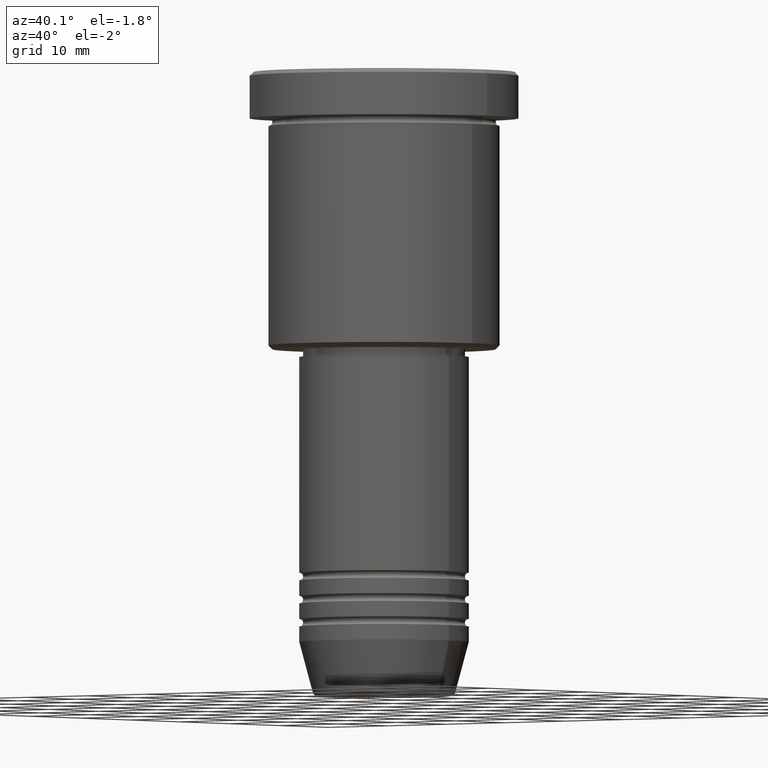
[diagram: clean part render]
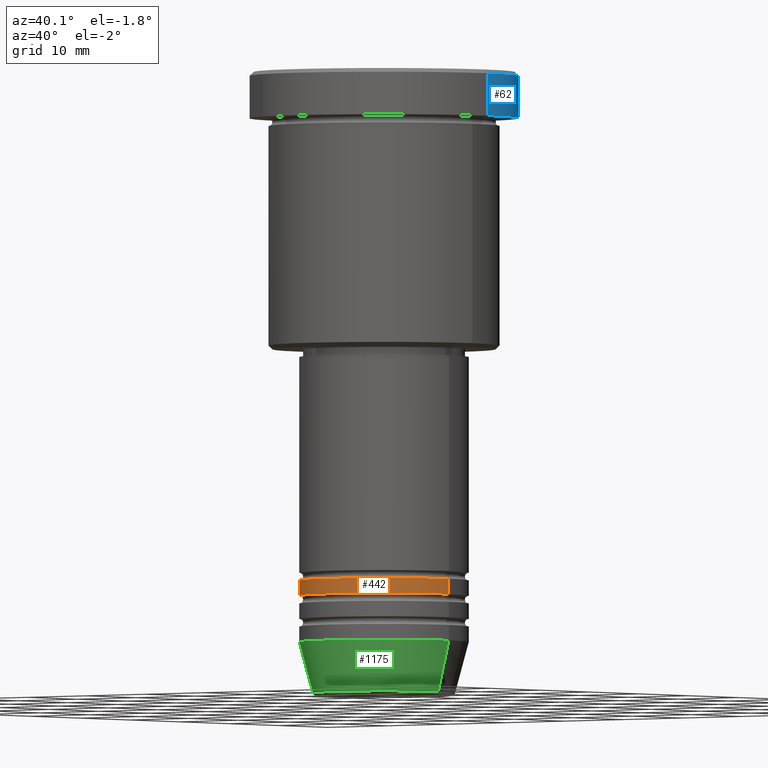
[diagram: same view with three faces highlighted in distinct colors, each labeled with its STEP entity id]
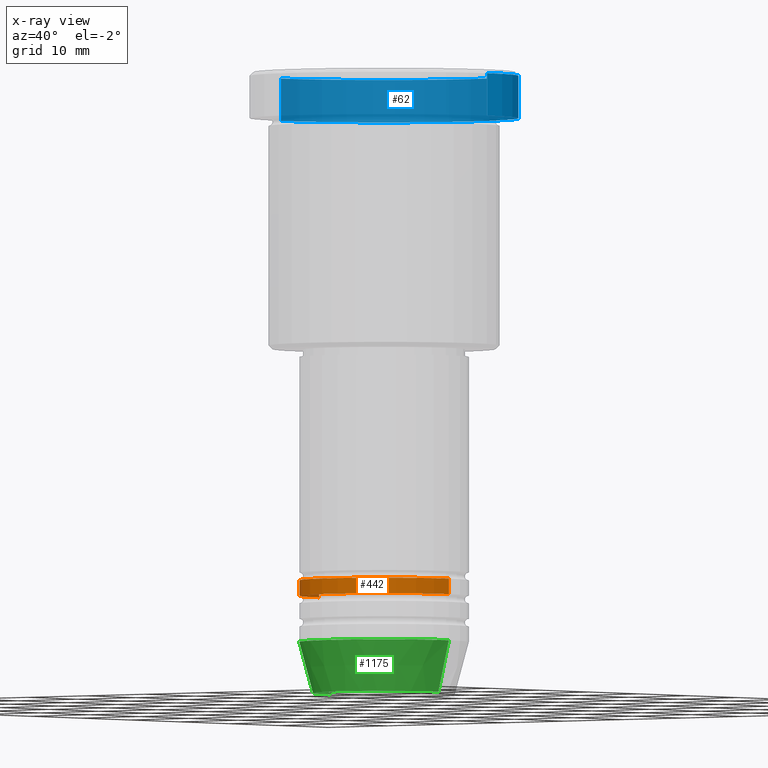
[diagram: x-ray of the same camera — body ghosted, the three highlighted faces saturated]
A machine part, auxiliary view with three faces highlighted in distinct colors.
The next image is the same camera in x-ray (body ghosted, the three faces saturated) — at least one of them is partly hidden behind the body in this view.
Their STEP definitions:

[orange] entity #442 — the highlighted cylindrical surface (partial cylindrical patch) has radius 11 mm, axis along (-0, -0, 1).
#39 = AXIS2_PLACEMENT_3D ( 'NONE', #49, #233, #793 ) ;
#49 = CARTESIAN_POINT ( 'NONE',  ( 0.000000000000000000, 0.000000000000000000, 0.000000000000000000 ) ) ;
#92 = DIRECTION ( 'NONE',  ( -0.000000000000000000, -0.000000000000000000, 1.000000000000000000 ) ) ;
#103 = DIRECTION ( 'NONE',  ( 1.000000000000000000, 0.000000000000000000, 0.000000000000000000 ) ) ;
#196 = ORIENTED_EDGE ( 'NONE', *, *, #555, .T. ) ;
#198 = EDGE_CURVE ( 'NONE', #948, #544, #506, .T. ) ;
#233 = DIRECTION ( 'NONE',  ( -0.000000000000000000, -0.000000000000000000, 1.000000000000000000 ) ) ;
#237 = ORIENTED_EDGE ( 'NONE', *, *, #198, .T. ) ;
#258 = DIRECTION ( 'NONE',  ( -0.000000000000000000, -0.000000000000000000, 1.000000000000000000 ) ) ;
#261 = CIRCLE ( 'NONE', #986, 11.00000000000000000 ) ;
#275 = VECTOR ( 'NONE', #258, 1000.000000000000000 ) ;
#303 = CARTESIAN_POINT ( 'NONE',  ( 11.00000000000000000, 0.000000000000000000, -67.99999999999997158 ) ) ;
#308 = VERTEX_POINT ( 'NONE', #996 ) ;
#328 = CYLINDRICAL_SURFACE ( 'NONE', #39, 11.00000000000000000 ) ;
#373 = VECTOR ( 'NONE', #92, 1000.000000000000000 ) ;
#379 = VERTEX_POINT ( 'NONE', #916 ) ;
#380 = CARTESIAN_POINT ( 'NONE',  ( 0.000000000000000000, 0.000000000000000000, -65.99999999999997158 ) ) ;
#381 = LINE ( 'NONE', #751, #373 ) ;
#442 = ADVANCED_FACE ( 'NONE', ( #1120 ), #328, .T. ) ;
#452 = CARTESIAN_POINT ( 'NONE',  ( 11.00000000000000000, 0.000000000000000000, 0.000000000000000000 ) ) ;
#506 = CIRCLE ( 'NONE', #721, 11.00000000000000000 ) ;
#544 = VERTEX_POINT ( 'NONE', #303 ) ;
#555 = EDGE_CURVE ( 'NONE', #544, #308, #787, .T. ) ;
#623 = CARTESIAN_POINT ( 'NONE',  ( 0.000000000000000000, 0.000000000000000000, -67.99999999999997158 ) ) ;
#643 = DIRECTION ( 'NONE',  ( -0.000000000000000000, -0.000000000000000000, 1.000000000000000000 ) ) ;
#697 = ORIENTED_EDGE ( 'NONE', *, *, #808, .F. ) ;
#721 = AXIS2_PLACEMENT_3D ( 'NONE', #623, #1054, #886 ) ;
#751 = CARTESIAN_POINT ( 'NONE',  ( -11.00000000000000000, 1.347111479062088405E-15, 0.000000000000000000 ) ) ;
#787 = LINE ( 'NONE', #452, #275 ) ;
#793 = DIRECTION ( 'NONE',  ( 1.000000000000000000, 0.000000000000000000, 0.000000000000000000 ) ) ;
#808 = EDGE_CURVE ( 'NONE', #948, #379, #381, .T. ) ;
#821 = ORIENTED_EDGE ( 'NONE', *, *, #1180, .F. ) ;
#886 = DIRECTION ( 'NONE',  ( 1.000000000000000000, 0.000000000000000000, 0.000000000000000000 ) ) ;
#916 = CARTESIAN_POINT ( 'NONE',  ( -11.00000000000000000, 1.347111479062088405E-15, -65.99999999999997158 ) ) ;
#943 = EDGE_LOOP ( 'NONE', ( #697, #237, #196, #821 ) ) ;
#948 = VERTEX_POINT ( 'NONE', #1032 ) ;
#986 = AXIS2_PLACEMENT_3D ( 'NONE', #380, #643, #103 ) ;
#996 = CARTESIAN_POINT ( 'NONE',  ( 11.00000000000000000, 0.000000000000000000, -65.99999999999997158 ) ) ;
#1032 = CARTESIAN_POINT ( 'NONE',  ( -11.00000000000000000, 1.347111479062088405E-15, -67.99999999999997158 ) ) ;
#1054 = DIRECTION ( 'NONE',  ( -0.000000000000000000, -0.000000000000000000, 1.000000000000000000 ) ) ;
#1120 = FACE_OUTER_BOUND ( 'NONE', #943, .T. ) ;
#1180 = EDGE_CURVE ( 'NONE', #379, #308, #261, .T. ) ;

[blue] entity #62 — the highlighted cylindrical surface (partial cylindrical patch) has radius 17.5 mm, axis along (-0, -0, 1).
#2 = ORIENTED_EDGE ( 'NONE', *, *, #1089, .T. ) ;
#18 = EDGE_CURVE ( 'NONE', #449, #1149, #946, .T. ) ;
#62 = ADVANCED_FACE ( 'NONE', ( #208 ), #318, .T. ) ;
#105 = VECTOR ( 'NONE', #573, 1000.000000000000000 ) ;
#130 = ORIENTED_EDGE ( 'NONE', *, *, #749, .T. ) ;
#151 = LINE ( 'NONE', #1070, #705 ) ;
#188 = CARTESIAN_POINT ( 'NONE',  ( 0.000000000000000000, 0.000000000000000000, -5.999999999999995559 ) ) ;
#208 = FACE_OUTER_BOUND ( 'NONE', #283, .T. ) ;
#240 = VERTEX_POINT ( 'NONE', #323 ) ;
#283 = EDGE_LOOP ( 'NONE', ( #130, #2, #1055, #869 ) ) ;
#318 = CYLINDRICAL_SURFACE ( 'NONE', #513, 17.50000000000000000 ) ;
#322 = CARTESIAN_POINT ( 'NONE',  ( -17.50000000000000000, 2.143131898507868248E-15, -5.999999999999995559 ) ) ;
#323 = CARTESIAN_POINT ( 'NONE',  ( -17.50000000000000000, 2.143131898507868248E-15, -0.4999999999999864553 ) ) ;
#356 = AXIS2_PLACEMENT_3D ( 'NONE', #188, #1016, #565 ) ;
#387 = CARTESIAN_POINT ( 'NONE',  ( 17.50000000000000000, 0.000000000000000000, -5.999999999999995559 ) ) ;
#398 = DIRECTION ( 'NONE',  ( 1.000000000000000000, 0.000000000000000000, 0.000000000000000000 ) ) ;
#399 = AXIS2_PLACEMENT_3D ( 'NONE', #988, #545, #450 ) ;
#449 = VERTEX_POINT ( 'NONE', #387 ) ;
#450 = DIRECTION ( 'NONE',  ( 1.000000000000000000, 0.000000000000000000, 0.000000000000000000 ) ) ;
#467 = VERTEX_POINT ( 'NONE', #322 ) ;
#481 = CARTESIAN_POINT ( 'NONE',  ( 0.000000000000000000, 0.000000000000000000, 0.000000000000000000 ) ) ;
#513 = AXIS2_PLACEMENT_3D ( 'NONE', #481, #1049, #398 ) ;
#545 = DIRECTION ( 'NONE',  ( 0.000000000000000000, 0.000000000000000000, -1.000000000000000000 ) ) ;
#565 = DIRECTION ( 'NONE',  ( 1.000000000000000000, 0.000000000000000000, 0.000000000000000000 ) ) ;
#573 = DIRECTION ( 'NONE',  ( -0.000000000000000000, -0.000000000000000000, 1.000000000000000000 ) ) ;
#611 = CIRCLE ( 'NONE', #399, 17.50000000000000000 ) ;
#705 = VECTOR ( 'NONE', #1075, 1000.000000000000000 ) ;
#749 = EDGE_CURVE ( 'NONE', #449, #467, #874, .T. ) ;
#816 = CARTESIAN_POINT ( 'NONE',  ( 17.50000000000000000, 0.000000000000000000, -0.4999999999999864553 ) ) ;
#869 = ORIENTED_EDGE ( 'NONE', *, *, #18, .F. ) ;
#874 = CIRCLE ( 'NONE', #356, 17.50000000000000000 ) ;
#946 = LINE ( 'NONE', #1026, #105 ) ;
#988 = CARTESIAN_POINT ( 'NONE',  ( 0.000000000000000000, 0.000000000000000000, -0.4999999999999864553 ) ) ;
#1016 = DIRECTION ( 'NONE',  ( -0.000000000000000000, -0.000000000000000000, 1.000000000000000000 ) ) ;
#1026 = CARTESIAN_POINT ( 'NONE',  ( 17.50000000000000000, 0.000000000000000000, 0.000000000000000000 ) ) ;
#1049 = DIRECTION ( 'NONE',  ( -0.000000000000000000, -0.000000000000000000, 1.000000000000000000 ) ) ;
#1055 = ORIENTED_EDGE ( 'NONE', *, *, #1143, .T. ) ;
#1070 = CARTESIAN_POINT ( 'NONE',  ( -17.50000000000000000, 2.143131898507868248E-15, 0.000000000000000000 ) ) ;
#1075 = DIRECTION ( 'NONE',  ( -0.000000000000000000, -0.000000000000000000, 1.000000000000000000 ) ) ;
#1089 = EDGE_CURVE ( 'NONE', #467, #240, #151, .T. ) ;
#1143 = EDGE_CURVE ( 'NONE', #240, #1149, #611, .T. ) ;
#1149 = VERTEX_POINT ( 'NONE', #816 ) ;

[green] entity #1175 — the highlighted conical surface has half-angle 15 deg.
#3 = AXIS2_PLACEMENT_3D ( 'NONE', #93, #637, #447 ) ;
#32 = VERTEX_POINT ( 'NONE', #771 ) ;
#73 = CARTESIAN_POINT ( 'NONE',  ( -11.00000000000000000, 1.347111479062088405E-15, -74.00000000000000000 ) ) ;
#93 = CARTESIAN_POINT ( 'NONE',  ( 0.000000000000000000, 0.000000000000000000, -80.62940952255124216 ) ) ;
#96 = CARTESIAN_POINT ( 'NONE',  ( 9.223655072137194821, 0.000000000000000000, -80.62940952255124216 ) ) ;
#98 = VECTOR ( 'NONE', #249, 1000.000000000000000 ) ;
#119 = LINE ( 'NONE', #1057, #662 ) ;
#144 = ORIENTED_EDGE ( 'NONE', *, *, #302, .T. ) ;
#192 = EDGE_CURVE ( 'NONE', #32, #1084, #985, .T. ) ;
#204 = CONICAL_SURFACE ( 'NONE', #877, 11.00000000000000000, 0.2617993877991500740 ) ;
#249 = DIRECTION ( 'NONE',  ( -0.2588190451025213501, 3.169619151431772337E-17, 0.9659258262890680902 ) ) ;
#260 = AXIS2_PLACEMENT_3D ( 'NONE', #708, #1081, #540 ) ;
#302 = EDGE_CURVE ( 'NONE', #32, #791, #586, .T. ) ;
#351 = ORIENTED_EDGE ( 'NONE', *, *, #192, .F. ) ;
#421 = EDGE_CURVE ( 'NONE', #791, #1130, #119, .T. ) ;
#447 = DIRECTION ( 'NONE',  ( 1.000000000000000000, 0.000000000000000000, 0.000000000000000000 ) ) ;
#540 = DIRECTION ( 'NONE',  ( 1.000000000000000000, 0.000000000000000000, 0.000000000000000000 ) ) ;
#564 = DIRECTION ( 'NONE',  ( 1.000000000000000000, 0.000000000000000000, 0.000000000000000000 ) ) ;
#572 = DIRECTION ( 'NONE',  ( 0.2588190451025213501, 0.000000000000000000, 0.9659258262890680902 ) ) ;
#586 = CIRCLE ( 'NONE', #3, 9.223655072137194821 ) ;
#626 = CARTESIAN_POINT ( 'NONE',  ( 11.00000000000000000, 0.000000000000000000, -74.00000000000000000 ) ) ;
#637 = DIRECTION ( 'NONE',  ( -0.000000000000000000, -0.000000000000000000, 1.000000000000000000 ) ) ;
#662 = VECTOR ( 'NONE', #572, 1000.000000000000000 ) ;
#708 = CARTESIAN_POINT ( 'NONE',  ( 0.000000000000000000, 0.000000000000000000, -74.00000000000000000 ) ) ;
#720 = CARTESIAN_POINT ( 'NONE',  ( -11.00000000000000000, 1.347111479062088405E-15, -74.00000000000000000 ) ) ;
#771 = CARTESIAN_POINT ( 'NONE',  ( -9.223655072137194821, 1.238341722557647399E-15, -80.62940952255124216 ) ) ;
#791 = VERTEX_POINT ( 'NONE', #96 ) ;
#875 = CIRCLE ( 'NONE', #260, 11.00000000000000000 ) ;
#877 = AXIS2_PLACEMENT_3D ( 'NONE', #912, #1183, #564 ) ;
#912 = CARTESIAN_POINT ( 'NONE',  ( 0.000000000000000000, 0.000000000000000000, -74.00000000000000000 ) ) ;
#985 = LINE ( 'NONE', #720, #98 ) ;
#1009 = ORIENTED_EDGE ( 'NONE', *, *, #1024, .F. ) ;
#1011 = FACE_OUTER_BOUND ( 'NONE', #1062, .T. ) ;
#1024 = EDGE_CURVE ( 'NONE', #1084, #1130, #875, .T. ) ;
#1057 = CARTESIAN_POINT ( 'NONE',  ( 11.00000000000000000, 0.000000000000000000, -74.00000000000000000 ) ) ;
#1062 = EDGE_LOOP ( 'NONE', ( #351, #144, #1069, #1009 ) ) ;
#1069 = ORIENTED_EDGE ( 'NONE', *, *, #421, .T. ) ;
#1081 = DIRECTION ( 'NONE',  ( -0.000000000000000000, -0.000000000000000000, 1.000000000000000000 ) ) ;
#1084 = VERTEX_POINT ( 'NONE', #73 ) ;
#1130 = VERTEX_POINT ( 'NONE', #626 ) ;
#1175 = ADVANCED_FACE ( 'NONE', ( #1011 ), #204, .T. ) ;
#1183 = DIRECTION ( 'NONE',  ( -0.000000000000000000, -0.000000000000000000, 1.000000000000000000 ) ) ;